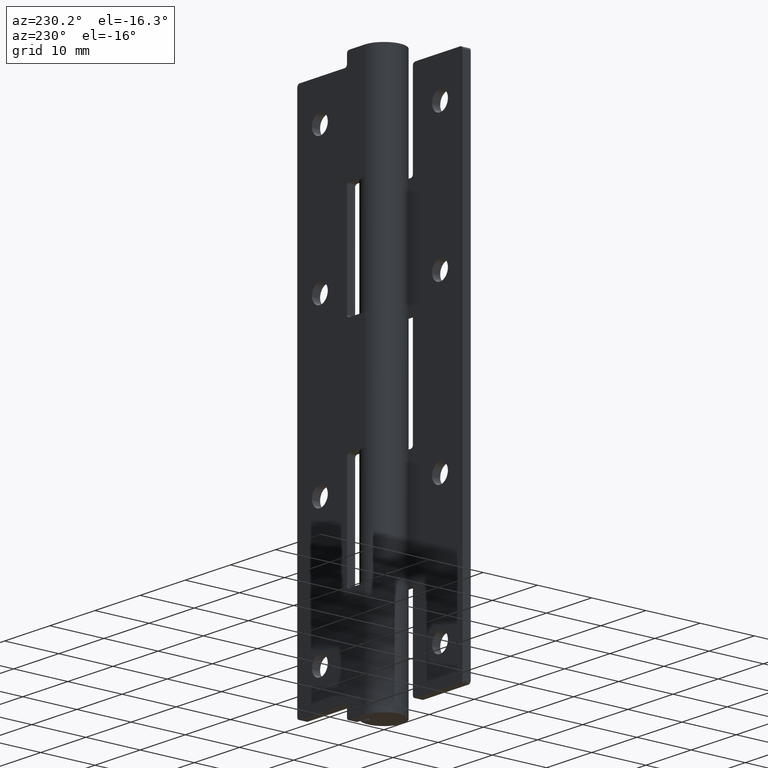
[diagram: clean part render]
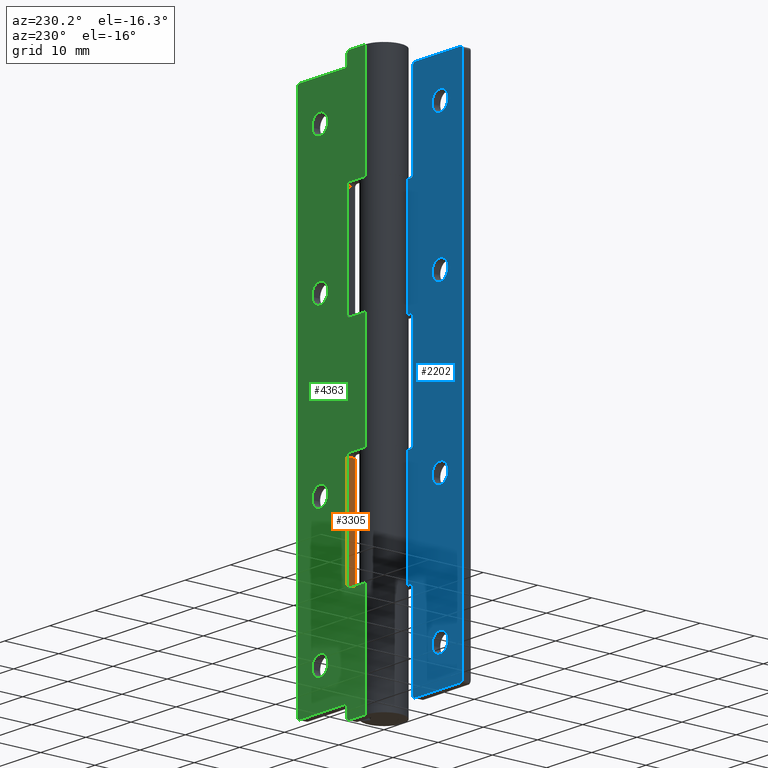
[diagram: same view with three faces highlighted in distinct colors, each labeled with its STEP entity id]
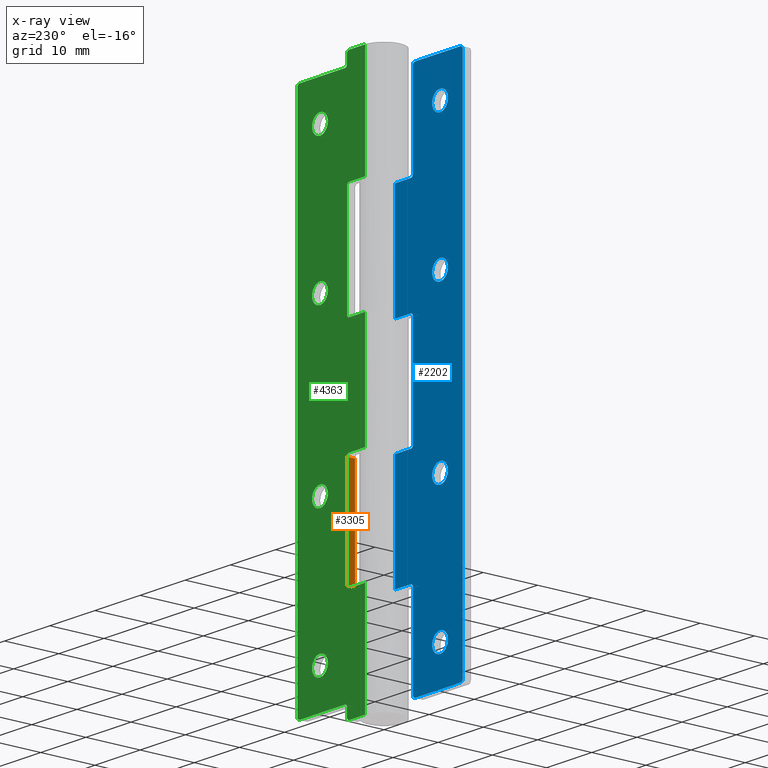
[diagram: x-ray of the same camera — body ghosted, the three highlighted faces saturated]
A machine part, auxiliary view with three faces highlighted in distinct colors.
The next image is the same camera in x-ray (body ghosted, the three faces saturated) — at least one of them is partly hidden behind the body in this view.
Their STEP definitions:

[orange] entity #3305 — the highlighted face is a freeform B-spline surface patch.
#2988=CARTESIAN_POINT('',(4.0,2.0,39.0));
#2989=VERTEX_POINT('',#2988);
#3010=CARTESIAN_POINT('',(4.0,3.500000000000000,39.0));
#3011=VERTEX_POINT('',#3010);
#3025=CARTESIAN_POINT('',(4.0,2.0,39.0));
#3026=CARTESIAN_POINT('',(4.0,3.500000000000000,39.0));
#3027=QUASI_UNIFORM_CURVE('',1,(#3025,#3026),.UNSPECIFIED.,.F.,.U.);
#3028=EDGE_CURVE('',#2989,#3011,#3027,.T.);
#3047=CARTESIAN_POINT('',(4.0,2.0,20.0));
#3048=VERTEX_POINT('',#3047);
#3064=CARTESIAN_POINT('',(4.0,3.500000000000000,20.0));
#3065=VERTEX_POINT('',#3064);
#3066=CARTESIAN_POINT('',(4.0,3.500000000000000,20.0));
#3067=CARTESIAN_POINT('',(4.0,2.0,20.0));
#3068=QUASI_UNIFORM_CURVE('',1,(#3066,#3067),.UNSPECIFIED.,.F.,.U.);
#3069=EDGE_CURVE('',#3065,#3048,#3068,.T.);
#3286=CARTESIAN_POINT('',(4.0,3.574924997092710,19.050950036825689));
#3287=CARTESIAN_POINT('',(4.0,3.574924997092710,39.949050472794028));
#3288=CARTESIAN_POINT('',(4.0,1.925074962674156,19.050950036825689));
#3289=CARTESIAN_POINT('',(4.0,1.925074962674156,39.949050472794028));
#3290=B_SPLINE_SURFACE_WITH_KNOTS('',1,1,((#3286,#3288),(#3287,#3289)),.UNSPECIFIED.,.F.,.F.,.U.,(2,2),(2,2),(0.0,20.898100435968342),(0.041708334948495,0.958291687403247),.UNSPECIFIED.);
#3291=CARTESIAN_POINT('',(4.0,3.500000000000000,20.0));
#3292=CARTESIAN_POINT('',(4.0,3.500000000000000,39.0));
#3293=QUASI_UNIFORM_CURVE('',1,(#3291,#3292),.UNSPECIFIED.,.F.,.U.);
#3294=EDGE_CURVE('',#3065,#3011,#3293,.T.);
#3295=ORIENTED_EDGE('',*,*,#3294,.F.);
#3296=ORIENTED_EDGE('',*,*,#3069,.T.);
#3297=CARTESIAN_POINT('',(4.0,2.0,20.0));
#3298=CARTESIAN_POINT('',(4.0,2.0,39.0));
#3299=QUASI_UNIFORM_CURVE('',1,(#3297,#3298),.UNSPECIFIED.,.F.,.U.);
#3300=EDGE_CURVE('',#3048,#2989,#3299,.T.);
#3301=ORIENTED_EDGE('',*,*,#3300,.T.);
#3302=ORIENTED_EDGE('',*,*,#3028,.T.);
#3303=EDGE_LOOP('',(#3295,#3296,#3301,#3302));
#3304=FACE_OUTER_BOUND('',#3303,.T.);
#3305=ADVANCED_FACE('',(#3304),#3290,.F.);

[blue] entity #2202 — the highlighted face is a freeform B-spline surface patch.
#351=CARTESIAN_POINT('',(-8.253264102773130,-2.0,89.393165055627662));
#352=VERTEX_POINT('',#351);
#358=CARTESIAN_POINT('',(-10.0,-2.0,87.750000000000000));
#359=VERTEX_POINT('',#358);
#360=CARTESIAN_POINT('',(-10.0,-2.0,87.750000000000000));
#361=CARTESIAN_POINT('',(-8.353764383266924,-2.000000000000000,87.750000000000000));
#362=CARTESIAN_POINT('',(-8.253264102773130,-2.000000000000000,89.393165055627662));
#370=(BOUNDED_CURVE()B_SPLINE_CURVE(2,(#360,#361,#362),.UNSPECIFIED.,.F.,.U.)B_SPLINE_CURVE_WITH_KNOTS((3,3),(0.500000000000000,0.739332962205154),.UNSPECIFIED.)CURVE()GEOMETRIC_REPRESENTATION_ITEM()RATIONAL_B_SPLINE_CURVE((1.0,0.719603993326296,0.976072041594302))REPRESENTATION_ITEM(''));
#371=EDGE_CURVE('',#359,#352,#370,.T.);
#373=CARTESIAN_POINT('',(-11.737766671125360,-2.0,89.706559910742385));
#374=VERTEX_POINT('',#373);
#375=CARTESIAN_POINT('',(-11.737766671125357,-2.0,89.706559910742385));
#376=CARTESIAN_POINT('',(-11.750000000000000,-2.000000000000000,89.603642209484875));
#377=CARTESIAN_POINT('',(-11.750000000000000,-2.0,89.500000000000000));
#378=CARTESIAN_POINT('',(-11.750000000000004,-2.0,87.750000000000000));
#379=CARTESIAN_POINT('',(-10.0,-2.0,87.750000000000000));
#387=(BOUNDED_CURVE()B_SPLINE_CURVE(2,(#375,#376,#377,#378,#379),.UNSPECIFIED.,.F.,.U.)B_SPLINE_CURVE_WITH_KNOTS((3,2,3),(0.229562473497545,0.250000000000000,0.500000000000000),.UNSPECIFIED.)CURVE()GEOMETRIC_REPRESENTATION_ITEM()RATIONAL_B_SPLINE_CURVE((0.956026754152411,0.976055948312443,1.0,0.707106781186547,1.0))REPRESENTATION_ITEM(''));
#388=EDGE_CURVE('',#374,#359,#387,.T.);
#432=CARTESIAN_POINT('',(-10.0,-2.0,91.250000000000000));
#433=VERTEX_POINT('',#432);
#434=CARTESIAN_POINT('',(-10.0,-2.0,91.250000000000000));
#435=CARTESIAN_POINT('',(-11.554305420247269,-2.000000000000000,91.249999999999972));
#436=CARTESIAN_POINT('',(-11.737766671125357,-2.0,89.706559910742385));
#444=(BOUNDED_CURVE()B_SPLINE_CURVE(2,(#434,#435,#436),.UNSPECIFIED.,.F.,.U.)B_SPLINE_CURVE_WITH_KNOTS((3,3),(0.0,0.229562473497545),.UNSPECIFIED.)CURVE()GEOMETRIC_REPRESENTATION_ITEM()RATIONAL_B_SPLINE_CURVE((1.0,0.731050832874104,0.956026754152411))REPRESENTATION_ITEM(''));
#445=EDGE_CURVE('',#433,#374,#444,.T.);
#447=CARTESIAN_POINT('',(-8.253264102773130,-2.000000000000000,89.393165055627662));
#448=CARTESIAN_POINT('',(-8.250000000000000,-2.000000000000000,89.446532664040632));
#449=CARTESIAN_POINT('',(-8.250000000000000,-2.0,89.500000000000000));
#450=CARTESIAN_POINT('',(-8.250000000000000,-2.0,91.249999999999986));
#451=CARTESIAN_POINT('',(-10.0,-2.0,91.250000000000000));
#459=(BOUNDED_CURVE()B_SPLINE_CURVE(2,(#447,#448,#449,#450,#451),.UNSPECIFIED.,.F.,.U.)B_SPLINE_CURVE_WITH_KNOTS((3,2,3),(0.739332962205155,0.750000000000000,1.0),.UNSPECIFIED.)CURVE()GEOMETRIC_REPRESENTATION_ITEM()RATIONAL_B_SPLINE_CURVE((0.976072041594304,0.987502787860253,1.0,0.707106781186547,1.0))REPRESENTATION_ITEM(''));
#460=EDGE_CURVE('',#352,#433,#459,.T.);
#537=CARTESIAN_POINT('',(-8.253264102773130,-2.0,64.393165055627662));
#538=VERTEX_POINT('',#537);
#544=CARTESIAN_POINT('',(-10.0,-2.0,62.750000000000000));
#545=VERTEX_POINT('',#544);
#546=CARTESIAN_POINT('',(-10.0,-2.0,62.750000000000000));
#547=CARTESIAN_POINT('',(-8.353764383266924,-2.000000000000000,62.750000000000007));
#548=CARTESIAN_POINT('',(-8.253264102773130,-2.000000000000000,64.393165055627662));
#556=(BOUNDED_CURVE()B_SPLINE_CURVE(2,(#546,#547,#548),.UNSPECIFIED.,.F.,.U.)B_SPLINE_CURVE_WITH_KNOTS((3,3),(0.500000000000000,0.739332962205154),.UNSPECIFIED.)CURVE()GEOMETRIC_REPRESENTATION_ITEM()RATIONAL_B_SPLINE_CURVE((1.0,0.719603993326296,0.976072041594302))REPRESENTATION_ITEM(''));
#557=EDGE_CURVE('',#545,#538,#556,.T.);
#559=CARTESIAN_POINT('',(-11.737766671125360,-2.0,64.706559910742357));
#560=VERTEX_POINT('',#559);
#561=CARTESIAN_POINT('',(-11.737766671125353,-2.000000000000000,64.706559910742357));
#562=CARTESIAN_POINT('',(-11.750000000000004,-2.000000000000000,64.603642209484860));
#563=CARTESIAN_POINT('',(-11.750000000000000,-2.0,64.500000000000000));
#564=CARTESIAN_POINT('',(-11.750000000000004,-2.0,62.750000000000000));
#565=CARTESIAN_POINT('',(-10.0,-2.0,62.750000000000000));
#573=(BOUNDED_CURVE()B_SPLINE_CURVE(2,(#561,#562,#563,#564,#565),.UNSPECIFIED.,.F.,.U.)B_SPLINE_CURVE_WITH_KNOTS((3,2,3),(0.229562473497548,0.250000000000000,0.500000000000000),.UNSPECIFIED.)CURVE()GEOMETRIC_REPRESENTATION_ITEM()RATIONAL_B_SPLINE_CURVE((0.956026754152417,0.976055948312447,1.0,0.707106781186547,1.0))REPRESENTATION_ITEM(''));
#574=EDGE_CURVE('',#560,#545,#573,.T.);
#618=CARTESIAN_POINT('',(-10.0,-2.0,66.250000000000000));
#619=VERTEX_POINT('',#618);
#620=CARTESIAN_POINT('',(-10.0,-2.0,66.250000000000000));
#621=CARTESIAN_POINT('',(-11.554305420247296,-2.000000000000000,66.250000000000000));
#622=CARTESIAN_POINT('',(-11.737766671125353,-2.000000000000000,64.706559910742357));
#630=(BOUNDED_CURVE()B_SPLINE_CURVE(2,(#620,#621,#622),.UNSPECIFIED.,.F.,.U.)B_SPLINE_CURVE_WITH_KNOTS((3,3),(0.0,0.229562473497548),.UNSPECIFIED.)CURVE()GEOMETRIC_REPRESENTATION_ITEM()RATIONAL_B_SPLINE_CURVE((1.0,0.731050832874101,0.956026754152417))REPRESENTATION_ITEM(''));
#631=EDGE_CURVE('',#619,#560,#630,.T.);
#633=CARTESIAN_POINT('',(-8.253264102773130,-2.000000000000000,64.393165055627676));
#634=CARTESIAN_POINT('',(-8.250000000000000,-2.000000000000000,64.446532664040618));
#635=CARTESIAN_POINT('',(-8.250000000000000,-2.0,64.500000000000000));
#636=CARTESIAN_POINT('',(-8.250000000000000,-2.0,66.250000000000000));
#637=CARTESIAN_POINT('',(-10.0,-2.0,66.250000000000000));
#645=(BOUNDED_CURVE()B_SPLINE_CURVE(2,(#633,#634,#635,#636,#637),.UNSPECIFIED.,.F.,.U.)B_SPLINE_CURVE_WITH_KNOTS((3,2,3),(0.739332962205155,0.750000000000000,1.0),.UNSPECIFIED.)CURVE()GEOMETRIC_REPRESENTATION_ITEM()RATIONAL_B_SPLINE_CURVE((0.976072041594304,0.987502787860253,1.0,0.707106781186547,1.0))REPRESENTATION_ITEM(''));
#646=EDGE_CURVE('',#538,#619,#645,.T.);
#723=CARTESIAN_POINT('',(-8.253264102773130,-2.0,34.393165055627669));
#724=VERTEX_POINT('',#723);
#730=CARTESIAN_POINT('',(-10.0,-2.0,32.750000000000000));
#731=VERTEX_POINT('',#730);
#732=CARTESIAN_POINT('',(-10.0,-2.0,32.750000000000000));
#733=CARTESIAN_POINT('',(-8.353764383266904,-2.000000000000000,32.750000000000007));
#734=CARTESIAN_POINT('',(-8.253264102773130,-2.0,34.393165055627669));
#742=(BOUNDED_CURVE()B_SPLINE_CURVE(2,(#732,#733,#734),.UNSPECIFIED.,.F.,.U.)B_SPLINE_CURVE_WITH_KNOTS((3,3),(0.500000000000000,0.739332962205157),.UNSPECIFIED.)CURVE()GEOMETRIC_REPRESENTATION_ITEM()RATIONAL_B_SPLINE_CURVE((1.0,0.719603993326293,0.976072041594307))REPRESENTATION_ITEM(''));
#743=EDGE_CURVE('',#731,#724,#742,.T.);
#745=CARTESIAN_POINT('',(-11.737766671125360,-2.0,34.706559910742357));
#746=VERTEX_POINT('',#745);
#747=CARTESIAN_POINT('',(-11.737766671125366,-2.000000000000000,34.706559910742357));
#748=CARTESIAN_POINT('',(-11.750000000000004,-2.000000000000000,34.603642209484875));
#749=CARTESIAN_POINT('',(-11.750000000000000,-2.0,34.500000000000000));
#750=CARTESIAN_POINT('',(-11.750000000000004,-2.0,32.750000000000000));
#751=CARTESIAN_POINT('',(-10.0,-2.0,32.750000000000000));
#759=(BOUNDED_CURVE()B_SPLINE_CURVE(2,(#747,#748,#749,#750,#751),.UNSPECIFIED.,.F.,.U.)B_SPLINE_CURVE_WITH_KNOTS((3,2,3),(0.229562473497548,0.250000000000000,0.500000000000000),.UNSPECIFIED.)CURVE()GEOMETRIC_REPRESENTATION_ITEM()RATIONAL_B_SPLINE_CURVE((0.956026754152417,0.976055948312447,1.0,0.707106781186547,1.0))REPRESENTATION_ITEM(''));
#760=EDGE_CURVE('',#746,#731,#759,.T.);
#804=CARTESIAN_POINT('',(-10.0,-2.0,36.250000000000007));
#805=VERTEX_POINT('',#804);
#806=CARTESIAN_POINT('',(-10.0,-2.0,36.250000000000007));
#807=CARTESIAN_POINT('',(-11.554305420247296,-2.000000000000000,36.250000000000014));
#808=CARTESIAN_POINT('',(-11.737766671125366,-2.000000000000000,34.706559910742357));
#816=(BOUNDED_CURVE()B_SPLINE_CURVE(2,(#806,#807,#808),.UNSPECIFIED.,.F.,.U.)B_SPLINE_CURVE_WITH_KNOTS((3,3),(0.0,0.229562473497548),.UNSPECIFIED.)CURVE()GEOMETRIC_REPRESENTATION_ITEM()RATIONAL_B_SPLINE_CURVE((1.0,0.731050832874101,0.956026754152417))REPRESENTATION_ITEM(''));
#817=EDGE_CURVE('',#805,#746,#816,.T.);
#819=CARTESIAN_POINT('',(-8.253264102773130,-2.000000000000000,34.393165055627669));
#820=CARTESIAN_POINT('',(-8.250000000000000,-2.000000000000000,34.446532664040618));
#821=CARTESIAN_POINT('',(-8.250000000000000,-2.0,34.500000000000000));
#822=CARTESIAN_POINT('',(-8.250000000000000,-2.0,36.250000000000007));
#823=CARTESIAN_POINT('',(-10.0,-2.0,36.250000000000007));
#831=(BOUNDED_CURVE()B_SPLINE_CURVE(2,(#819,#820,#821,#822,#823),.UNSPECIFIED.,.F.,.U.)B_SPLINE_CURVE_WITH_KNOTS((3,2,3),(0.739332962205156,0.750000000000000,1.0),.UNSPECIFIED.)CURVE()GEOMETRIC_REPRESENTATION_ITEM()RATIONAL_B_SPLINE_CURVE((0.976072041594306,0.987502787860253,1.0,0.707106781186547,1.0))REPRESENTATION_ITEM(''));
#832=EDGE_CURVE('',#724,#805,#831,.T.);
#909=CARTESIAN_POINT('',(-8.253264102773130,-2.0,9.393165055627669));
#910=VERTEX_POINT('',#909);
#916=CARTESIAN_POINT('',(-10.0,-2.0,7.750000000000000));
#917=VERTEX_POINT('',#916);
#918=CARTESIAN_POINT('',(-10.0,-2.0,7.750000000000000));
#919=CARTESIAN_POINT('',(-8.353764383266904,-2.000000000000000,7.749999999999999));
#920=CARTESIAN_POINT('',(-8.253264102773130,-2.0,9.393165055627669));
#928=(BOUNDED_CURVE()B_SPLINE_CURVE(2,(#918,#919,#920),.UNSPECIFIED.,.F.,.U.)B_SPLINE_CURVE_WITH_KNOTS((3,3),(0.500000000000000,0.739332962205157),.UNSPECIFIED.)CURVE()GEOMETRIC_REPRESENTATION_ITEM()RATIONAL_B_SPLINE_CURVE((1.0,0.719603993326293,0.976072041594307))REPRESENTATION_ITEM(''));
#929=EDGE_CURVE('',#917,#910,#928,.T.);
#931=CARTESIAN_POINT('',(-11.737766671125360,-2.0,9.706559910742362));
#932=VERTEX_POINT('',#931);
#933=CARTESIAN_POINT('',(-11.737766671125360,-2.000000000000000,9.706559910742362));
#934=CARTESIAN_POINT('',(-11.750000000000000,-2.000000000000000,9.603642209484860));
#935=CARTESIAN_POINT('',(-11.750000000000000,-2.0,9.500000000000000));
#936=CARTESIAN_POINT('',(-11.750000000000004,-2.0,7.750000000000001));
#937=CARTESIAN_POINT('',(-10.0,-2.0,7.750000000000000));
#945=(BOUNDED_CURVE()B_SPLINE_CURVE(2,(#933,#934,#935,#936,#937),.UNSPECIFIED.,.F.,.U.)B_SPLINE_CURVE_WITH_KNOTS((3,2,3),(0.229562473497548,0.250000000000000,0.500000000000000),.UNSPECIFIED.)CURVE()GEOMETRIC_REPRESENTATION_ITEM()RATIONAL_B_SPLINE_CURVE((0.956026754152417,0.976055948312447,1.0,0.707106781186547,1.0))REPRESENTATION_ITEM(''));
#946=EDGE_CURVE('',#932,#917,#945,.T.);
#990=CARTESIAN_POINT('',(-10.0,-2.0,11.250000000000000));
#991=VERTEX_POINT('',#990);
#992=CARTESIAN_POINT('',(-10.0,-2.0,11.250000000000000));
#993=CARTESIAN_POINT('',(-11.554305420247298,-2.000000000000000,11.250000000000000));
#994=CARTESIAN_POINT('',(-11.737766671125360,-2.000000000000000,9.706559910742362));
#1002=(BOUNDED_CURVE()B_SPLINE_CURVE(2,(#992,#993,#994),.UNSPECIFIED.,.F.,.U.)B_SPLINE_CURVE_WITH_KNOTS((3,3),(0.0,0.229562473497548),.UNSPECIFIED.)CURVE()GEOMETRIC_REPRESENTATION_ITEM()RATIONAL_B_SPLINE_CURVE((1.0,0.731050832874101,0.956026754152417))REPRESENTATION_ITEM(''));
#1003=EDGE_CURVE('',#991,#932,#1002,.T.);
#1005=CARTESIAN_POINT('',(-8.253264102773130,-2.000000000000000,9.393165055627669));
#1006=CARTESIAN_POINT('',(-8.250000000000000,-2.000000000000000,9.446532664040618));
#1007=CARTESIAN_POINT('',(-8.250000000000000,-2.0,9.500000000000000));
#1008=CARTESIAN_POINT('',(-8.250000000000000,-2.0,11.250000000000000));
#1009=CARTESIAN_POINT('',(-10.0,-2.0,11.250000000000000));
#1017=(BOUNDED_CURVE()B_SPLINE_CURVE(2,(#1005,#1006,#1007,#1008,#1009),.UNSPECIFIED.,.F.,.U.)B_SPLINE_CURVE_WITH_KNOTS((3,2,3),(0.739332962205156,0.750000000000000,1.0),.UNSPECIFIED.)CURVE()GEOMETRIC_REPRESENTATION_ITEM()RATIONAL_B_SPLINE_CURVE((0.976072041594306,0.987502787860253,1.0,0.707106781186547,1.0))REPRESENTATION_ITEM(''));
#1018=EDGE_CURVE('',#910,#991,#1017,.T.);
#1053=CARTESIAN_POINT('',(-4.0,-2.0,40.0));
#1054=VERTEX_POINT('',#1053);
#1055=CARTESIAN_POINT('',(-3.500000000000000,-2.0,39.500000000000000));
#1056=VERTEX_POINT('',#1055);
#1057=CARTESIAN_POINT('',(-4.0,-2.0,40.0));
#1058=CARTESIAN_POINT('',(-4.000000000000000,-2.000000000000000,39.500000000000000));
#1059=CARTESIAN_POINT('',(-3.500000000000000,-2.0,39.500000000000000));
#1067=(BOUNDED_CURVE()B_SPLINE_CURVE(2,(#1057,#1058,#1059),.UNSPECIFIED.,.F.,.U.)CURVE()GEOMETRIC_REPRESENTATION_ITEM()QUASI_UNIFORM_CURVE()RATIONAL_B_SPLINE_CURVE((1.0,0.707106781186548,1.0))REPRESENTATION_ITEM(''));
#1068=EDGE_CURVE('',#1054,#1056,#1067,.T.);
#1114=CARTESIAN_POINT('',(-3.500000000000000,-2.0,59.500000000000000));
#1115=VERTEX_POINT('',#1114);
#1116=CARTESIAN_POINT('',(-4.0,-2.0,59.0));
#1117=VERTEX_POINT('',#1116);
#1118=CARTESIAN_POINT('',(-3.500000000000000,-2.0,59.500000000000000));
#1119=CARTESIAN_POINT('',(-4.000000000000000,-2.000000000000000,59.500000000000007));
#1120=CARTESIAN_POINT('',(-4.0,-2.0,59.0));
#1128=(BOUNDED_CURVE()B_SPLINE_CURVE(2,(#1118,#1119,#1120),.UNSPECIFIED.,.F.,.U.)CURVE()GEOMETRIC_REPRESENTATION_ITEM()QUASI_UNIFORM_CURVE()RATIONAL_B_SPLINE_CURVE((1.0,0.707106781186548,1.0))REPRESENTATION_ITEM(''));
#1129=EDGE_CURVE('',#1115,#1117,#1128,.T.);
#1175=CARTESIAN_POINT('',(-3.500000000000000,-2.0,19.500000000000000));
#1176=VERTEX_POINT('',#1175);
#1177=CARTESIAN_POINT('',(-4.0,-2.0,19.0));
#1178=VERTEX_POINT('',#1177);
#1179=CARTESIAN_POINT('',(-3.500000000000000,-2.0,19.500000000000000));
#1180=CARTESIAN_POINT('',(-4.000000000000000,-2.000000000000000,19.500000000000004));
#1181=CARTESIAN_POINT('',(-4.0,-2.0,19.0));
#1189=(BOUNDED_CURVE()B_SPLINE_CURVE(2,(#1179,#1180,#1181),.UNSPECIFIED.,.F.,.U.)CURVE()GEOMETRIC_REPRESENTATION_ITEM()QUASI_UNIFORM_CURVE()RATIONAL_B_SPLINE_CURVE((1.0,0.707106781186548,1.0))REPRESENTATION_ITEM(''));
#1190=EDGE_CURVE('',#1176,#1178,#1189,.T.);
#1253=CARTESIAN_POINT('',(-15.0,-2.0,3.0));
#1254=VERTEX_POINT('',#1253);
#1260=CARTESIAN_POINT('',(-14.500000000000000,-2.0,2.500000000000000));
#1261=VERTEX_POINT('',#1260);
#1262=CARTESIAN_POINT('',(-14.500000000000000,-2.0,2.500000000000000));
#1263=CARTESIAN_POINT('',(-15.000000000000009,-2.000000000000000,2.500000000000000));
#1264=CARTESIAN_POINT('',(-15.0,-2.0,3.0));
#1272=(BOUNDED_CURVE()B_SPLINE_CURVE(2,(#1262,#1263,#1264),.UNSPECIFIED.,.F.,.U.)CURVE()GEOMETRIC_REPRESENTATION_ITEM()QUASI_UNIFORM_CURVE()RATIONAL_B_SPLINE_CURVE((1.0,0.707106781186548,1.0))REPRESENTATION_ITEM(''));
#1273=EDGE_CURVE('',#1261,#1254,#1272,.T.);
#1297=CARTESIAN_POINT('',(-4.0,-2.0,3.0));
#1298=VERTEX_POINT('',#1297);
#1299=CARTESIAN_POINT('',(-4.500000000000000,-2.0,2.500000000000000));
#1300=VERTEX_POINT('',#1299);
#1301=CARTESIAN_POINT('',(-4.0,-2.0,3.0));
#1302=CARTESIAN_POINT('',(-4.000000000000000,-2.000000000000000,2.500000000000000));
#1303=CARTESIAN_POINT('',(-4.500000000000000,-2.0,2.500000000000000));
#1311=(BOUNDED_CURVE()B_SPLINE_CURVE(2,(#1301,#1302,#1303),.UNSPECIFIED.,.F.,.U.)CURVE()GEOMETRIC_REPRESENTATION_ITEM()QUASI_UNIFORM_CURVE()RATIONAL_B_SPLINE_CURVE((1.0,0.707106781186548,1.0))REPRESENTATION_ITEM(''));
#1312=EDGE_CURVE('',#1298,#1300,#1311,.T.);
#1358=CARTESIAN_POINT('',(-4.0,-2.0,80.0));
#1359=VERTEX_POINT('',#1358);
#1360=CARTESIAN_POINT('',(-3.500000000000000,-2.0,79.500000000000000));
#1361=VERTEX_POINT('',#1360);
#1362=CARTESIAN_POINT('',(-4.0,-2.0,80.0));
#1363=CARTESIAN_POINT('',(-4.000000000000000,-2.000000000000000,79.500000000000014));
#1364=CARTESIAN_POINT('',(-3.500000000000000,-2.0,79.500000000000000));
#1372=(BOUNDED_CURVE()B_SPLINE_CURVE(2,(#1362,#1363,#1364),.UNSPECIFIED.,.F.,.U.)CURVE()GEOMETRIC_REPRESENTATION_ITEM()QUASI_UNIFORM_CURVE()RATIONAL_B_SPLINE_CURVE((1.0,0.707106781186548,1.0))REPRESENTATION_ITEM(''));
#1373=EDGE_CURVE('',#1359,#1361,#1372,.T.);
#1436=CARTESIAN_POINT('',(-14.500000000000000,-2.0,96.500000000000000));
#1437=VERTEX_POINT('',#1436);
#1443=CARTESIAN_POINT('',(-15.0,-2.0,96.0));
#1444=VERTEX_POINT('',#1443);
#1445=CARTESIAN_POINT('',(-15.0,-2.0,96.0));
#1446=CARTESIAN_POINT('',(-15.000000000000009,-2.000000000000000,96.500000000000014));
#1447=CARTESIAN_POINT('',(-14.500000000000000,-2.0,96.500000000000000));
#1455=(BOUNDED_CURVE()B_SPLINE_CURVE(2,(#1445,#1446,#1447),.UNSPECIFIED.,.F.,.U.)CURVE()GEOMETRIC_REPRESENTATION_ITEM()QUASI_UNIFORM_CURVE()RATIONAL_B_SPLINE_CURVE((1.0,0.707106781186548,1.0))REPRESENTATION_ITEM(''));
#1456=EDGE_CURVE('',#1444,#1437,#1455,.T.);
#1480=CARTESIAN_POINT('',(-4.500000000000000,-2.0,96.500000000000000));
#1481=VERTEX_POINT('',#1480);
#1482=CARTESIAN_POINT('',(-4.0,-2.0,96.0));
#1483=VERTEX_POINT('',#1482);
#1484=CARTESIAN_POINT('',(-4.500000000000000,-2.0,96.500000000000000));
#1485=CARTESIAN_POINT('',(-4.000000000000000,-2.000000000000000,96.500000000000014));
#1486=CARTESIAN_POINT('',(-4.0,-2.0,96.0));
#1494=(BOUNDED_CURVE()B_SPLINE_CURVE(2,(#1484,#1485,#1486),.UNSPECIFIED.,.F.,.U.)CURVE()GEOMETRIC_REPRESENTATION_ITEM()QUASI_UNIFORM_CURVE()RATIONAL_B_SPLINE_CURVE((1.0,0.707106781186548,1.0))REPRESENTATION_ITEM(''));
#1495=EDGE_CURVE('',#1481,#1483,#1494,.T.);
#1532=CARTESIAN_POINT('',(-1.653896E-015,-2.0,39.500000000000000));
#1533=VERTEX_POINT('',#1532);
#1534=CARTESIAN_POINT('',(-3.500000000000000,-2.0,39.500000000000000));
#1535=CARTESIAN_POINT('',(-1.653896E-015,-2.0,39.500000000000000));
#1536=QUASI_UNIFORM_CURVE('',1,(#1534,#1535),.UNSPECIFIED.,.F.,.U.);
#1537=EDGE_CURVE('',#1056,#1533,#1536,.T.);
#1610=CARTESIAN_POINT('',(-1.653896E-015,-2.0,59.500000000000000));
#1611=VERTEX_POINT('',#1610);
#1612=CARTESIAN_POINT('',(-1.653896E-015,-2.0,59.500000000000000));
#1613=CARTESIAN_POINT('',(-3.500000000000000,-2.0,59.500000000000000));
#1614=QUASI_UNIFORM_CURVE('',1,(#1612,#1613),.UNSPECIFIED.,.F.,.U.);
#1615=EDGE_CURVE('',#1611,#1115,#1614,.T.);
#1672=CARTESIAN_POINT('',(-4.0,-2.0,59.0));
#1673=CARTESIAN_POINT('',(-4.0,-2.0,40.0));
#1674=QUASI_UNIFORM_CURVE('',1,(#1672,#1673),.UNSPECIFIED.,.F.,.U.);
#1675=EDGE_CURVE('',#1117,#1054,#1674,.T.);
#1692=CARTESIAN_POINT('',(-1.653896E-015,-2.0,79.500000000000000));
#1693=VERTEX_POINT('',#1692);
#1694=CARTESIAN_POINT('',(-3.500000000000000,-2.0,79.500000000000000));
#1695=CARTESIAN_POINT('',(-1.653896E-015,-2.0,79.500000000000000));
#1696=QUASI_UNIFORM_CURVE('',1,(#1694,#1695),.UNSPECIFIED.,.F.,.U.);
#1697=EDGE_CURVE('',#1361,#1693,#1696,.T.);
#1768=CARTESIAN_POINT('',(-4.0,-2.0,96.0));
#1769=CARTESIAN_POINT('',(-4.0,-2.0,80.0));
#1770=QUASI_UNIFORM_CURVE('',1,(#1768,#1769),.UNSPECIFIED.,.F.,.U.);
#1771=EDGE_CURVE('',#1483,#1359,#1770,.T.);
#1790=CARTESIAN_POINT('',(-1.653896E-015,-2.0,19.500000000000000));
#1791=VERTEX_POINT('',#1790);
#1792=CARTESIAN_POINT('',(-1.653896E-015,-2.0,19.500000000000000));
#1793=CARTESIAN_POINT('',(-3.500000000000000,-2.0,19.500000000000000));
#1794=QUASI_UNIFORM_CURVE('',1,(#1792,#1793),.UNSPECIFIED.,.F.,.U.);
#1795=EDGE_CURVE('',#1791,#1176,#1794,.T.);
#1852=CARTESIAN_POINT('',(-4.0,-2.0,19.0));
#1853=CARTESIAN_POINT('',(-4.0,-2.0,3.0));
#1854=QUASI_UNIFORM_CURVE('',1,(#1852,#1853),.UNSPECIFIED.,.F.,.U.);
#1855=EDGE_CURVE('',#1178,#1298,#1854,.T.);
#1872=CARTESIAN_POINT('',(-15.0,-2.0,96.0));
#1873=CARTESIAN_POINT('',(-15.0,-2.0,3.0));
#1874=QUASI_UNIFORM_CURVE('',1,(#1872,#1873),.UNSPECIFIED.,.F.,.U.);
#1875=EDGE_CURVE('',#1444,#1254,#1874,.T.);
#1892=CARTESIAN_POINT('',(-14.500000000000000,-2.0,2.500000000000000));
#1893=CARTESIAN_POINT('',(-4.500000000000000,-2.0,2.500000000000000));
#1894=QUASI_UNIFORM_CURVE('',1,(#1892,#1893),.UNSPECIFIED.,.F.,.U.);
#1895=EDGE_CURVE('',#1261,#1300,#1894,.T.);
#1918=CARTESIAN_POINT('',(-14.500000000000000,-2.0,96.500000000000000));
#1919=CARTESIAN_POINT('',(-4.500000000000000,-2.0,96.500000000000000));
#1920=QUASI_UNIFORM_CURVE('',1,(#1918,#1919),.UNSPECIFIED.,.F.,.U.);
#1921=EDGE_CURVE('',#1437,#1481,#1920,.T.);
#2110=CARTESIAN_POINT('',(-1.653896E-015,-2.0,39.500000000000000));
#2111=CARTESIAN_POINT('',(-1.653896E-015,-2.0,19.500000000000000));
#2112=QUASI_UNIFORM_CURVE('',1,(#2110,#2111),.UNSPECIFIED.,.F.,.U.);
#2113=EDGE_CURVE('',#1533,#1791,#2112,.T.);
#2141=CARTESIAN_POINT('',(-1.653896E-015,-2.0,79.500000000000000));
#2142=CARTESIAN_POINT('',(-1.653896E-015,-2.0,59.500000000000000));
#2143=QUASI_UNIFORM_CURVE('',1,(#2141,#2142),.UNSPECIFIED.,.F.,.U.);
#2144=EDGE_CURVE('',#1693,#1611,#2143,.T.);
#2151=CARTESIAN_POINT('',(-15.749249970927091,-2.0,-2.195299817809761));
#2152=CARTESIAN_POINT('',(-15.749249970927091,-2.0,101.195302339086200));
#2153=CARTESIAN_POINT('',(0.749250373258439,-2.0,-2.195299817809761));
#2154=CARTESIAN_POINT('',(0.749250373258439,-2.0,101.195302339086200));
#2155=B_SPLINE_SURFACE_WITH_KNOTS('',1,1,((#2151,#2153),(#2152,#2154)),.UNSPECIFIED.,.F.,.F.,.U.,(2,2),(2,2),(0.0,103.390602156895990),(0.0,16.498500344185530),.UNSPECIFIED.);
#2156=ORIENTED_EDGE('',*,*,#1795,.T.);
#2157=ORIENTED_EDGE('',*,*,#1190,.T.);
#2158=ORIENTED_EDGE('',*,*,#1855,.T.);
#2159=ORIENTED_EDGE('',*,*,#1312,.T.);
#2160=ORIENTED_EDGE('',*,*,#1895,.F.);
#2161=ORIENTED_EDGE('',*,*,#1273,.T.);
#2162=ORIENTED_EDGE('',*,*,#1875,.F.);
#2163=ORIENTED_EDGE('',*,*,#1456,.T.);
#2164=ORIENTED_EDGE('',*,*,#1921,.T.);
#2165=ORIENTED_EDGE('',*,*,#1495,.T.);
#2166=ORIENTED_EDGE('',*,*,#1771,.T.);
#2167=ORIENTED_EDGE('',*,*,#1373,.T.);
#2168=ORIENTED_EDGE('',*,*,#1697,.T.);
#2169=ORIENTED_EDGE('',*,*,#2144,.T.);
#2170=ORIENTED_EDGE('',*,*,#1615,.T.);
#2171=ORIENTED_EDGE('',*,*,#1129,.T.);
#2172=ORIENTED_EDGE('',*,*,#1675,.T.);
#2173=ORIENTED_EDGE('',*,*,#1068,.T.);
#2174=ORIENTED_EDGE('',*,*,#1537,.T.);
#2175=ORIENTED_EDGE('',*,*,#2113,.T.);
#2176=EDGE_LOOP('',(#2156,#2157,#2158,#2159,#2160,#2161,#2162,#2163,#2164,#2165,#2166,#2167,#2168,#2169,#2170,#2171,#2172,#2173,#2174,#2175));
#2177=FACE_OUTER_BOUND('',#2176,.T.);
#2178=ORIENTED_EDGE('',*,*,#929,.T.);
#2179=ORIENTED_EDGE('',*,*,#1018,.T.);
#2180=ORIENTED_EDGE('',*,*,#1003,.T.);
#2181=ORIENTED_EDGE('',*,*,#946,.T.);
#2182=EDGE_LOOP('',(#2178,#2179,#2180,#2181));
#2183=FACE_BOUND('',#2182,.T.);
#2184=ORIENTED_EDGE('',*,*,#743,.T.);
#2185=ORIENTED_EDGE('',*,*,#832,.T.);
#2186=ORIENTED_EDGE('',*,*,#817,.T.);
#2187=ORIENTED_EDGE('',*,*,#760,.T.);
#2188=EDGE_LOOP('',(#2184,#2185,#2186,#2187));
#2189=FACE_BOUND('',#2188,.T.);
#2190=ORIENTED_EDGE('',*,*,#557,.T.);
#2191=ORIENTED_EDGE('',*,*,#646,.T.);
#2192=ORIENTED_EDGE('',*,*,#631,.T.);
#2193=ORIENTED_EDGE('',*,*,#574,.T.);
#2194=EDGE_LOOP('',(#2190,#2191,#2192,#2193));
#2195=FACE_BOUND('',#2194,.T.);
#2196=ORIENTED_EDGE('',*,*,#371,.T.);
#2197=ORIENTED_EDGE('',*,*,#460,.T.);
#2198=ORIENTED_EDGE('',*,*,#445,.T.);
#2199=ORIENTED_EDGE('',*,*,#388,.T.);
#2200=EDGE_LOOP('',(#2196,#2197,#2198,#2199));
#2201=FACE_BOUND('',#2200,.T.);
#2202=ADVANCED_FACE('',(#2177,#2183,#2189,#2195,#2201),#2155,.T.);

[green] entity #4363 — the highlighted face is a freeform B-spline surface patch.
#2279=CARTESIAN_POINT('',(8.255394665999852,3.499999999999951,89.637303417940785));
#2280=VERTEX_POINT('',#2279);
#2286=CARTESIAN_POINT('',(10.0,3.499999999999950,91.250000000000000));
#2287=VERTEX_POINT('',#2286);
#2288=CARTESIAN_POINT('',(10.0,3.499999999999950,91.250000000000000));
#2289=CARTESIAN_POINT('',(8.382316640373986,3.499999999999951,91.249999999999986));
#2290=CARTESIAN_POINT('',(8.255394665999852,3.499999999999951,89.637303417940785));
#2298=(BOUNDED_CURVE()B_SPLINE_CURVE(2,(#2288,#2289,#2290),.UNSPECIFIED.,.F.,.U.)B_SPLINE_CURVE_WITH_KNOTS((3,3),(0.0,0.236331300550804),.UNSPECIFIED.)CURVE()GEOMETRIC_REPRESENTATION_ITEM()RATIONAL_B_SPLINE_CURVE((1.0,0.723120658701222,0.969723356000766))REPRESENTATION_ITEM(''));
#2299=EDGE_CURVE('',#2287,#2280,#2298,.T.);
#2301=CARTESIAN_POINT('',(11.744605334000150,3.499999999999950,89.362696582059201));
#2302=VERTEX_POINT('',#2301);
#2303=CARTESIAN_POINT('',(11.744605334000147,3.499999999999950,89.362696582059201));
#2304=CARTESIAN_POINT('',(11.749999999999998,3.499999999999951,89.431242312317565));
#2305=CARTESIAN_POINT('',(11.750000000000000,3.499999999999950,89.500000000000000));
#2306=CARTESIAN_POINT('',(11.750000000000004,3.499999999999950,91.249999999999986));
#2307=CARTESIAN_POINT('',(10.0,3.499999999999950,91.250000000000000));
#2315=(BOUNDED_CURVE()B_SPLINE_CURVE(2,(#2303,#2304,#2305,#2306,#2307),.UNSPECIFIED.,.F.,.U.)B_SPLINE_CURVE_WITH_KNOTS((3,2,3),(0.736331300550804,0.750000000000000,1.0),.UNSPECIFIED.)CURVE()GEOMETRIC_REPRESENTATION_ITEM()RATIONAL_B_SPLINE_CURVE((0.969723356000765,0.983986122485325,1.0,0.707106781186547,1.0))REPRESENTATION_ITEM(''));
#2316=EDGE_CURVE('',#2302,#2287,#2315,.T.);
#2392=CARTESIAN_POINT('',(10.0,3.499999999999950,87.750000000000000));
#2393=VERTEX_POINT('',#2392);
#2394=CARTESIAN_POINT('',(10.0,3.499999999999950,87.750000000000000));
#2395=CARTESIAN_POINT('',(11.617683359626023,3.499999999999951,87.750000000000014));
#2396=CARTESIAN_POINT('',(11.744605334000154,3.499999999999950,89.362696582059201));
#2404=(BOUNDED_CURVE()B_SPLINE_CURVE(2,(#2394,#2395,#2396),.UNSPECIFIED.,.F.,.U.)B_SPLINE_CURVE_WITH_KNOTS((3,3),(0.500000000000000,0.736331300550805),.UNSPECIFIED.)CURVE()GEOMETRIC_REPRESENTATION_ITEM()RATIONAL_B_SPLINE_CURVE((1.0,0.723120658701221,0.969723356000767))REPRESENTATION_ITEM(''));
#2405=EDGE_CURVE('',#2393,#2302,#2404,.T.);
#2407=CARTESIAN_POINT('',(8.255394665999852,3.499999999999951,89.637303417940785));
#2408=CARTESIAN_POINT('',(8.250000000000000,3.499999999999951,89.568757687682421));
#2409=CARTESIAN_POINT('',(8.250000000000000,3.499999999999950,89.500000000000000));
#2410=CARTESIAN_POINT('',(8.250000000000000,3.499999999999950,87.750000000000000));
#2411=CARTESIAN_POINT('',(10.0,3.499999999999950,87.750000000000000));
#2419=(BOUNDED_CURVE()B_SPLINE_CURVE(2,(#2407,#2408,#2409,#2410,#2411),.UNSPECIFIED.,.F.,.U.)B_SPLINE_CURVE_WITH_KNOTS((3,2,3),(0.236331300550804,0.250000000000000,0.500000000000000),.UNSPECIFIED.)CURVE()GEOMETRIC_REPRESENTATION_ITEM()RATIONAL_B_SPLINE_CURVE((0.969723356000766,0.983986122485326,1.0,0.707106781186547,1.0))REPRESENTATION_ITEM(''));
#2420=EDGE_CURVE('',#2280,#2393,#2419,.T.);
#2461=CARTESIAN_POINT('',(8.255394665999852,3.499999999999951,64.637303417940799));
#2462=VERTEX_POINT('',#2461);
#2468=CARTESIAN_POINT('',(10.0,3.499999999999950,66.250000000000000));
#2469=VERTEX_POINT('',#2468);
#2470=CARTESIAN_POINT('',(10.0,3.499999999999950,66.250000000000000));
#2471=CARTESIAN_POINT('',(8.382316640373986,3.499999999999951,66.249999999999986));
#2472=CARTESIAN_POINT('',(8.255394665999852,3.499999999999951,64.637303417940799));
#2480=(BOUNDED_CURVE()B_SPLINE_CURVE(2,(#2470,#2471,#2472),.UNSPECIFIED.,.F.,.U.)B_SPLINE_CURVE_WITH_KNOTS((3,3),(0.0,0.236331300550804),.UNSPECIFIED.)CURVE()GEOMETRIC_REPRESENTATION_ITEM()RATIONAL_B_SPLINE_CURVE((1.0,0.723120658701222,0.969723356000766))REPRESENTATION_ITEM(''));
#2481=EDGE_CURVE('',#2469,#2462,#2480,.T.);
#2483=CARTESIAN_POINT('',(11.744605334000150,3.499999999999950,64.362696582059201));
#2484=VERTEX_POINT('',#2483);
#2485=CARTESIAN_POINT('',(11.744605334000147,3.499999999999950,64.362696582059201));
#2486=CARTESIAN_POINT('',(11.749999999999998,3.499999999999951,64.431242312317579));
#2487=CARTESIAN_POINT('',(11.750000000000000,3.499999999999950,64.500000000000000));
#2488=CARTESIAN_POINT('',(11.750000000000004,3.499999999999950,66.250000000000000));
#2489=CARTESIAN_POINT('',(10.0,3.499999999999950,66.250000000000000));
#2497=(BOUNDED_CURVE()B_SPLINE_CURVE(2,(#2485,#2486,#2487,#2488,#2489),.UNSPECIFIED.,.F.,.U.)B_SPLINE_CURVE_WITH_KNOTS((3,2,3),(0.736331300550804,0.750000000000000,1.0),.UNSPECIFIED.)CURVE()GEOMETRIC_REPRESENTATION_ITEM()RATIONAL_B_SPLINE_CURVE((0.969723356000765,0.983986122485325,1.0,0.707106781186547,1.0))REPRESENTATION_ITEM(''));
#2498=EDGE_CURVE('',#2484,#2469,#2497,.T.);
#2574=CARTESIAN_POINT('',(10.0,3.499999999999950,62.750000000000000));
#2575=VERTEX_POINT('',#2574);
#2576=CARTESIAN_POINT('',(10.0,3.499999999999950,62.750000000000000));
#2577=CARTESIAN_POINT('',(11.617683359626023,3.499999999999951,62.750000000000000));
#2578=CARTESIAN_POINT('',(11.744605334000154,3.499999999999950,64.362696582059201));
#2586=(BOUNDED_CURVE()B_SPLINE_CURVE(2,(#2576,#2577,#2578),.UNSPECIFIED.,.F.,.U.)B_SPLINE_CURVE_WITH_KNOTS((3,3),(0.500000000000000,0.736331300550805),.UNSPECIFIED.)CURVE()GEOMETRIC_REPRESENTATION_ITEM()RATIONAL_B_SPLINE_CURVE((1.0,0.723120658701221,0.969723356000767))REPRESENTATION_ITEM(''));
#2587=EDGE_CURVE('',#2575,#2484,#2586,.T.);
#2589=CARTESIAN_POINT('',(8.255394665999852,3.499999999999951,64.637303417940799));
#2590=CARTESIAN_POINT('',(8.250000000000000,3.499999999999950,64.568757687682421));
#2591=CARTESIAN_POINT('',(8.250000000000000,3.499999999999950,64.500000000000000));
#2592=CARTESIAN_POINT('',(8.250000000000000,3.499999999999950,62.750000000000000));
#2593=CARTESIAN_POINT('',(10.0,3.499999999999950,62.750000000000000));
#2601=(BOUNDED_CURVE()B_SPLINE_CURVE(2,(#2589,#2590,#2591,#2592,#2593),.UNSPECIFIED.,.F.,.U.)B_SPLINE_CURVE_WITH_KNOTS((3,2,3),(0.236331300550804,0.250000000000000,0.500000000000000),.UNSPECIFIED.)CURVE()GEOMETRIC_REPRESENTATION_ITEM()RATIONAL_B_SPLINE_CURVE((0.969723356000766,0.983986122485326,1.0,0.707106781186547,1.0))REPRESENTATION_ITEM(''));
#2602=EDGE_CURVE('',#2462,#2575,#2601,.T.);
#2643=CARTESIAN_POINT('',(8.255394665999852,3.499999999999950,34.637303417940799));
#2644=VERTEX_POINT('',#2643);
#2650=CARTESIAN_POINT('',(10.0,3.499999999999950,36.250000000000007));
#2651=VERTEX_POINT('',#2650);
#2652=CARTESIAN_POINT('',(10.0,3.499999999999950,36.250000000000007));
#2653=CARTESIAN_POINT('',(8.382316640373995,3.499999999999951,36.250000000000007));
#2654=CARTESIAN_POINT('',(8.255394665999852,3.499999999999950,34.637303417940807));
#2662=(BOUNDED_CURVE()B_SPLINE_CURVE(2,(#2652,#2653,#2654),.UNSPECIFIED.,.F.,.U.)B_SPLINE_CURVE_WITH_KNOTS((3,3),(0.0,0.236331300550803),.UNSPECIFIED.)CURVE()GEOMETRIC_REPRESENTATION_ITEM()RATIONAL_B_SPLINE_CURVE((1.0,0.723120658701223,0.969723356000764))REPRESENTATION_ITEM(''));
#2663=EDGE_CURVE('',#2651,#2644,#2662,.T.);
#2665=CARTESIAN_POINT('',(11.744605334000150,3.499999999999950,34.362696582059201));
#2666=VERTEX_POINT('',#2665);
#2667=CARTESIAN_POINT('',(11.744605334000147,3.499999999999950,34.362696582059201));
#2668=CARTESIAN_POINT('',(11.749999999999998,3.499999999999951,34.431242312317572));
#2669=CARTESIAN_POINT('',(11.750000000000000,3.499999999999950,34.500000000000000));
#2670=CARTESIAN_POINT('',(11.750000000000004,3.499999999999950,36.250000000000007));
#2671=CARTESIAN_POINT('',(10.0,3.499999999999950,36.250000000000007));
#2679=(BOUNDED_CURVE()B_SPLINE_CURVE(2,(#2667,#2668,#2669,#2670,#2671),.UNSPECIFIED.,.F.,.U.)B_SPLINE_CURVE_WITH_KNOTS((3,2,3),(0.736331300550804,0.750000000000000,1.0),.UNSPECIFIED.)CURVE()GEOMETRIC_REPRESENTATION_ITEM()RATIONAL_B_SPLINE_CURVE((0.969723356000765,0.983986122485325,1.0,0.707106781186547,1.0))REPRESENTATION_ITEM(''));
#2680=EDGE_CURVE('',#2666,#2651,#2679,.T.);
#2756=CARTESIAN_POINT('',(10.0,3.499999999999950,32.750000000000000));
#2757=VERTEX_POINT('',#2756);
#2758=CARTESIAN_POINT('',(10.0,3.499999999999950,32.750000000000000));
#2759=CARTESIAN_POINT('',(11.617683359626023,3.499999999999951,32.750000000000000));
#2760=CARTESIAN_POINT('',(11.744605334000154,3.499999999999950,34.362696582059201));
#2768=(BOUNDED_CURVE()B_SPLINE_CURVE(2,(#2758,#2759,#2760),.UNSPECIFIED.,.F.,.U.)B_SPLINE_CURVE_WITH_KNOTS((3,3),(0.500000000000000,0.736331300550805),.UNSPECIFIED.)CURVE()GEOMETRIC_REPRESENTATION_ITEM()RATIONAL_B_SPLINE_CURVE((1.0,0.723120658701221,0.969723356000767))REPRESENTATION_ITEM(''));
#2769=EDGE_CURVE('',#2757,#2666,#2768,.T.);
#2771=CARTESIAN_POINT('',(8.255394665999852,3.499999999999951,34.637303417940799));
#2772=CARTESIAN_POINT('',(8.250000000000000,3.499999999999950,34.568757687682435));
#2773=CARTESIAN_POINT('',(8.250000000000000,3.499999999999950,34.500000000000000));
#2774=CARTESIAN_POINT('',(8.250000000000000,3.499999999999950,32.750000000000000));
#2775=CARTESIAN_POINT('',(10.0,3.499999999999950,32.750000000000000));
#2783=(BOUNDED_CURVE()B_SPLINE_CURVE(2,(#2771,#2772,#2773,#2774,#2775),.UNSPECIFIED.,.F.,.U.)B_SPLINE_CURVE_WITH_KNOTS((3,2,3),(0.236331300550803,0.250000000000000,0.500000000000000),.UNSPECIFIED.)CURVE()GEOMETRIC_REPRESENTATION_ITEM()RATIONAL_B_SPLINE_CURVE((0.969723356000764,0.983986122485325,1.0,0.707106781186547,1.0))REPRESENTATION_ITEM(''));
#2784=EDGE_CURVE('',#2644,#2757,#2783,.T.);
#2825=CARTESIAN_POINT('',(8.255394665999852,3.499999999999950,9.637303417940803));
#2826=VERTEX_POINT('',#2825);
#2832=CARTESIAN_POINT('',(10.0,3.499999999999950,11.250000000000000));
#2833=VERTEX_POINT('',#2832);
#2834=CARTESIAN_POINT('',(10.0,3.499999999999950,11.250000000000000));
#2835=CARTESIAN_POINT('',(8.382316640373988,3.499999999999950,11.250000000000002));
#2836=CARTESIAN_POINT('',(8.255394665999852,3.499999999999950,9.637303417940803));
#2844=(BOUNDED_CURVE()B_SPLINE_CURVE(2,(#2834,#2835,#2836),.UNSPECIFIED.,.F.,.U.)B_SPLINE_CURVE_WITH_KNOTS((3,3),(0.0,0.236331300550804),.UNSPECIFIED.)CURVE()GEOMETRIC_REPRESENTATION_ITEM()RATIONAL_B_SPLINE_CURVE((1.0,0.723120658701222,0.969723356000765))REPRESENTATION_ITEM(''));
#2845=EDGE_CURVE('',#2833,#2826,#2844,.T.);
#2847=CARTESIAN_POINT('',(11.744605334000150,3.499999999999950,9.362696582059197));
#2848=VERTEX_POINT('',#2847);
#2849=CARTESIAN_POINT('',(11.744605334000152,3.499999999999951,9.362696582059197));
#2850=CARTESIAN_POINT('',(11.750000000000000,3.499999999999950,9.431242312317568));
#2851=CARTESIAN_POINT('',(11.750000000000000,3.499999999999950,9.500000000000000));
#2852=CARTESIAN_POINT('',(11.750000000000004,3.499999999999950,11.250000000000000));
#2853=CARTESIAN_POINT('',(10.0,3.499999999999950,11.250000000000000));
#2861=(BOUNDED_CURVE()B_SPLINE_CURVE(2,(#2849,#2850,#2851,#2852,#2853),.UNSPECIFIED.,.F.,.U.)B_SPLINE_CURVE_WITH_KNOTS((3,2,3),(0.736331300550804,0.750000000000000,1.0),.UNSPECIFIED.)CURVE()GEOMETRIC_REPRESENTATION_ITEM()RATIONAL_B_SPLINE_CURVE((0.969723356000765,0.983986122485325,1.0,0.707106781186547,1.0))REPRESENTATION_ITEM(''));
#2862=EDGE_CURVE('',#2848,#2833,#2861,.T.);
#2938=CARTESIAN_POINT('',(10.0,3.499999999999950,7.750000000000000));
#2939=VERTEX_POINT('',#2938);
#2940=CARTESIAN_POINT('',(10.0,3.499999999999950,7.750000000000000));
#2941=CARTESIAN_POINT('',(11.617683359626001,3.499999999999951,7.750000000000002));
#2942=CARTESIAN_POINT('',(11.744605334000148,3.499999999999951,9.362696582059197));
#2950=(BOUNDED_CURVE()B_SPLINE_CURVE(2,(#2940,#2941,#2942),.UNSPECIFIED.,.F.,.U.)B_SPLINE_CURVE_WITH_KNOTS((3,3),(0.500000000000000,0.736331300550803),.UNSPECIFIED.)CURVE()GEOMETRIC_REPRESENTATION_ITEM()RATIONAL_B_SPLINE_CURVE((1.0,0.723120658701224,0.969723356000763))REPRESENTATION_ITEM(''));
#2951=EDGE_CURVE('',#2939,#2848,#2950,.T.);
#2953=CARTESIAN_POINT('',(8.255394665999852,3.499999999999950,9.637303417940803));
#2954=CARTESIAN_POINT('',(8.250000000000000,3.499999999999950,9.568757687682432));
#2955=CARTESIAN_POINT('',(8.250000000000000,3.499999999999950,9.500000000000000));
#2956=CARTESIAN_POINT('',(8.250000000000000,3.499999999999950,7.750000000000001));
#2957=CARTESIAN_POINT('',(10.0,3.499999999999950,7.750000000000000));
#2965=(BOUNDED_CURVE()B_SPLINE_CURVE(2,(#2953,#2954,#2955,#2956,#2957),.UNSPECIFIED.,.F.,.U.)B_SPLINE_CURVE_WITH_KNOTS((3,2,3),(0.236331300550804,0.250000000000000,0.500000000000000),.UNSPECIFIED.)CURVE()GEOMETRIC_REPRESENTATION_ITEM()RATIONAL_B_SPLINE_CURVE((0.969723356000765,0.983986122485325,1.0,0.707106781186547,1.0))REPRESENTATION_ITEM(''));
#2966=EDGE_CURVE('',#2826,#2939,#2965,.T.);
#3003=CARTESIAN_POINT('',(3.500000000000000,3.500000000000000,39.500000000000000));
#3004=VERTEX_POINT('',#3003);
#3010=CARTESIAN_POINT('',(4.0,3.500000000000000,39.0));
#3011=VERTEX_POINT('',#3010);
#3012=CARTESIAN_POINT('',(4.0,3.499999999999950,39.0));
#3013=CARTESIAN_POINT('',(4.000000000000000,3.499999999999949,39.500000000000000));
#3014=CARTESIAN_POINT('',(3.500000000000000,3.499999999999950,39.500000000000000));
#3022=(BOUNDED_CURVE()B_SPLINE_CURVE(2,(#3012,#3013,#3014),.UNSPECIFIED.,.F.,.U.)CURVE()GEOMETRIC_REPRESENTATION_ITEM()QUASI_UNIFORM_CURVE()RATIONAL_B_SPLINE_CURVE((1.0,0.707106781186548,1.0))REPRESENTATION_ITEM(''));
#3023=EDGE_CURVE('',#3011,#3004,#3022,.T.);
#3064=CARTESIAN_POINT('',(4.0,3.500000000000000,20.0));
#3065=VERTEX_POINT('',#3064);
#3071=CARTESIAN_POINT('',(3.500000000000000,3.500000000000000,19.500000000000000));
#3072=VERTEX_POINT('',#3071);
#3073=CARTESIAN_POINT('',(3.500000000000000,3.500000000000000,19.500000000000000));
#3074=CARTESIAN_POINT('',(4.000000000000000,3.499999999999949,19.500000000000004));
#3075=CARTESIAN_POINT('',(4.0,3.500000000000000,20.0));
#3083=(BOUNDED_CURVE()B_SPLINE_CURVE(2,(#3073,#3074,#3075),.UNSPECIFIED.,.F.,.U.)CURVE()GEOMETRIC_REPRESENTATION_ITEM()QUASI_UNIFORM_CURVE()RATIONAL_B_SPLINE_CURVE((1.0,0.707106781186548,1.0))REPRESENTATION_ITEM(''));
#3084=EDGE_CURVE('',#3072,#3065,#3083,.T.);
#3125=CARTESIAN_POINT('',(3.500000000000000,3.500000000000000,79.500000000000000));
#3126=VERTEX_POINT('',#3125);
#3132=CARTESIAN_POINT('',(4.0,3.500000000000000,79.0));
#3133=VERTEX_POINT('',#3132);
#3134=CARTESIAN_POINT('',(4.0,3.499999999999950,79.0));
#3135=CARTESIAN_POINT('',(4.000000000000000,3.499999999999949,79.500000000000014));
#3136=CARTESIAN_POINT('',(3.500000000000000,3.499999999999950,79.500000000000000));
#3144=(BOUNDED_CURVE()B_SPLINE_CURVE(2,(#3134,#3135,#3136),.UNSPECIFIED.,.F.,.U.)CURVE()GEOMETRIC_REPRESENTATION_ITEM()QUASI_UNIFORM_CURVE()RATIONAL_B_SPLINE_CURVE((1.0,0.707106781186548,1.0))REPRESENTATION_ITEM(''));
#3145=EDGE_CURVE('',#3133,#3126,#3144,.T.);
#3186=CARTESIAN_POINT('',(4.0,3.500000000000000,60.0));
#3187=VERTEX_POINT('',#3186);
#3193=CARTESIAN_POINT('',(3.500000000000000,3.500000000000000,59.500000000000000));
#3194=VERTEX_POINT('',#3193);
#3195=CARTESIAN_POINT('',(3.500000000000000,3.499999999999950,59.500000000000000));
#3196=CARTESIAN_POINT('',(4.000000000000000,3.499999999999949,59.500000000000007));
#3197=CARTESIAN_POINT('',(4.0,3.499999999999950,60.0));
#3205=(BOUNDED_CURVE()B_SPLINE_CURVE(2,(#3195,#3196,#3197),.UNSPECIFIED.,.F.,.U.)CURVE()GEOMETRIC_REPRESENTATION_ITEM()QUASI_UNIFORM_CURVE()RATIONAL_B_SPLINE_CURVE((1.0,0.707106781186548,1.0))REPRESENTATION_ITEM(''));
#3206=EDGE_CURVE('',#3194,#3187,#3205,.T.);
#3221=CARTESIAN_POINT('',(0.000000061086522,3.500000000000000,39.500000000000000));
#3222=VERTEX_POINT('',#3221);
#3223=CARTESIAN_POINT('',(3.500000000000000,3.500000000000000,39.500000000000000));
#3224=CARTESIAN_POINT('',(0.000000061086522,3.500000000000000,39.500000000000000));
#3225=QUASI_UNIFORM_CURVE('',1,(#3223,#3224),.UNSPECIFIED.,.F.,.U.);
#3226=EDGE_CURVE('',#3004,#3222,#3225,.T.);
#3291=CARTESIAN_POINT('',(4.0,3.500000000000000,20.0));
#3292=CARTESIAN_POINT('',(4.0,3.500000000000000,39.0));
#3293=QUASI_UNIFORM_CURVE('',1,(#3291,#3292),.UNSPECIFIED.,.F.,.U.);
#3294=EDGE_CURVE('',#3065,#3011,#3293,.T.);
#3319=CARTESIAN_POINT('',(0.000000061086522,3.500000000000000,19.500000000000000));
#3320=VERTEX_POINT('',#3319);
#3321=CARTESIAN_POINT('',(0.000000061086522,3.500000000000000,19.500000000000000));
#3322=CARTESIAN_POINT('',(3.500000000000000,3.500000000000000,19.500000000000000));
#3323=QUASI_UNIFORM_CURVE('',1,(#3321,#3322),.UNSPECIFIED.,.F.,.U.);
#3324=EDGE_CURVE('',#3320,#3072,#3323,.T.);
#3389=CARTESIAN_POINT('',(0.000000061086522,3.500000000000000,59.500000000000000));
#3390=VERTEX_POINT('',#3389);
#3391=CARTESIAN_POINT('',(3.500000000000000,3.500000000000000,59.500000000000000));
#3392=CARTESIAN_POINT('',(0.000000061086522,3.500000000000000,59.500000000000000));
#3393=QUASI_UNIFORM_CURVE('',1,(#3391,#3392),.UNSPECIFIED.,.F.,.U.);
#3394=EDGE_CURVE('',#3194,#3390,#3393,.T.);
#3451=CARTESIAN_POINT('',(4.0,3.500000000000000,79.0));
#3452=CARTESIAN_POINT('',(4.0,3.500000000000000,60.0));
#3453=QUASI_UNIFORM_CURVE('',1,(#3451,#3452),.UNSPECIFIED.,.F.,.U.);
#3454=EDGE_CURVE('',#3133,#3187,#3453,.T.);
#3471=CARTESIAN_POINT('',(0.0,3.500000000000000,79.500000000000000));
#3472=VERTEX_POINT('',#3471);
#3473=CARTESIAN_POINT('',(0.0,3.500000000000000,79.500000000000000));
#3474=CARTESIAN_POINT('',(3.500000000000000,3.500000000000000,79.500000000000000));
#3475=QUASI_UNIFORM_CURVE('',1,(#3473,#3474),.UNSPECIFIED.,.F.,.U.);
#3476=EDGE_CURVE('',#3472,#3126,#3475,.T.);
#3567=CARTESIAN_POINT('',(14.999999999999799,3.500000000000000,96.0));
#3568=VERTEX_POINT('',#3567);
#3574=CARTESIAN_POINT('',(14.499999999999799,3.500000000000000,96.500000000000000));
#3575=VERTEX_POINT('',#3574);
#3576=CARTESIAN_POINT('',(14.499999999999799,3.499999999999950,96.500000000000000));
#3577=CARTESIAN_POINT('',(14.999999999999796,3.499999999999949,96.500000000000014));
#3578=CARTESIAN_POINT('',(14.999999999999799,3.499999999999950,96.0));
#3586=(BOUNDED_CURVE()B_SPLINE_CURVE(2,(#3576,#3577,#3578),.UNSPECIFIED.,.F.,.U.)CURVE()GEOMETRIC_REPRESENTATION_ITEM()QUASI_UNIFORM_CURVE()RATIONAL_B_SPLINE_CURVE((1.0,0.707106781186548,1.0))REPRESENTATION_ITEM(''));
#3587=EDGE_CURVE('',#3575,#3568,#3586,.T.);
#3628=CARTESIAN_POINT('',(4.500000000000000,3.500000000000000,96.500000000000000));
#3629=VERTEX_POINT('',#3628);
#3635=CARTESIAN_POINT('',(4.0,3.500000000000000,97.0));
#3636=VERTEX_POINT('',#3635);
#3637=CARTESIAN_POINT('',(4.0,3.499999999999950,97.0));
#3638=CARTESIAN_POINT('',(4.000000000000000,3.499999999999949,96.500000000000014));
#3639=CARTESIAN_POINT('',(4.500000000000000,3.499999999999950,96.500000000000000));
#3647=(BOUNDED_CURVE()B_SPLINE_CURVE(2,(#3637,#3638,#3639),.UNSPECIFIED.,.F.,.U.)CURVE()GEOMETRIC_REPRESENTATION_ITEM()QUASI_UNIFORM_CURVE()RATIONAL_B_SPLINE_CURVE((1.0,0.707106781186548,1.0))REPRESENTATION_ITEM(''));
#3648=EDGE_CURVE('',#3636,#3629,#3647,.T.);
#3689=CARTESIAN_POINT('',(4.0,3.500000000000000,98.500000000000000));
#3690=VERTEX_POINT('',#3689);
#3696=CARTESIAN_POINT('',(3.500000000000000,3.500000000000000,99.0));
#3697=VERTEX_POINT('',#3696);
#3698=CARTESIAN_POINT('',(3.500000000000000,3.500000000000000,99.0));
#3699=CARTESIAN_POINT('',(4.000000000000000,3.499999999999999,98.999999999999986));
#3700=CARTESIAN_POINT('',(4.0,3.500000000000000,98.500000000000000));
#3708=(BOUNDED_CURVE()B_SPLINE_CURVE(2,(#3698,#3699,#3700),.UNSPECIFIED.,.F.,.U.)CURVE()GEOMETRIC_REPRESENTATION_ITEM()QUASI_UNIFORM_CURVE()RATIONAL_B_SPLINE_CURVE((1.0,0.707106781186548,1.0))REPRESENTATION_ITEM(''));
#3709=EDGE_CURVE('',#3697,#3690,#3708,.T.);
#3750=CARTESIAN_POINT('',(3.500000000000000,3.500000000000000,0.0));
#3751=VERTEX_POINT('',#3750);
#3757=CARTESIAN_POINT('',(4.0,3.500000000000000,0.500000000000000));
#3758=VERTEX_POINT('',#3757);
#3759=CARTESIAN_POINT('',(4.0,3.500000000000000,0.500000000000000));
#3760=CARTESIAN_POINT('',(4.000000000000000,3.499999999999949,0.0));
#3761=CARTESIAN_POINT('',(3.500000000000000,3.500000000000000,0.0));
#3769=(BOUNDED_CURVE()B_SPLINE_CURVE(2,(#3759,#3760,#3761),.UNSPECIFIED.,.F.,.U.)CURVE()GEOMETRIC_REPRESENTATION_ITEM()QUASI_UNIFORM_CURVE()RATIONAL_B_SPLINE_CURVE((1.0,0.707106781186548,1.0))REPRESENTATION_ITEM(''));
#3770=EDGE_CURVE('',#3758,#3751,#3769,.T.);
#3811=CARTESIAN_POINT('',(4.0,3.500000000000000,2.0));
#3812=VERTEX_POINT('',#3811);
#3818=CARTESIAN_POINT('',(4.500000000000000,3.500000000000000,2.500000000000000));
#3819=VERTEX_POINT('',#3818);
#3820=CARTESIAN_POINT('',(4.500000000000000,3.500000000000000,2.500000000000000));
#3821=CARTESIAN_POINT('',(4.000000000000000,3.499999999999949,2.500000000000000));
#3822=CARTESIAN_POINT('',(4.0,3.500000000000000,2.0));
#3830=(BOUNDED_CURVE()B_SPLINE_CURVE(2,(#3820,#3821,#3822),.UNSPECIFIED.,.F.,.U.)CURVE()GEOMETRIC_REPRESENTATION_ITEM()QUASI_UNIFORM_CURVE()RATIONAL_B_SPLINE_CURVE((1.0,0.707106781186548,1.0))REPRESENTATION_ITEM(''));
#3831=EDGE_CURVE('',#3819,#3812,#3830,.T.);
#3872=CARTESIAN_POINT('',(14.499999999999799,3.500000000000000,2.500000000000000));
#3873=VERTEX_POINT('',#3872);
#3879=CARTESIAN_POINT('',(14.999999999999799,3.500000000000000,3.0));
#3880=VERTEX_POINT('',#3879);
#3881=CARTESIAN_POINT('',(14.999999999999799,3.500000000000000,3.0));
#3882=CARTESIAN_POINT('',(14.999999999999796,3.499999999999999,2.500000000000000));
#3883=CARTESIAN_POINT('',(14.499999999999799,3.500000000000000,2.500000000000000));
#3891=(BOUNDED_CURVE()B_SPLINE_CURVE(2,(#3881,#3882,#3883),.UNSPECIFIED.,.F.,.U.)CURVE()GEOMETRIC_REPRESENTATION_ITEM()QUASI_UNIFORM_CURVE()RATIONAL_B_SPLINE_CURVE((1.0,0.707106781186548,1.0))REPRESENTATION_ITEM(''));
#3892=EDGE_CURVE('',#3880,#3873,#3891,.T.);
#3907=CARTESIAN_POINT('',(4.500000000000000,3.500000000000000,96.500000000000000));
#3908=CARTESIAN_POINT('',(14.499999999999799,3.500000000000000,96.500000000000000));
#3909=QUASI_UNIFORM_CURVE('',1,(#3907,#3908),.UNSPECIFIED.,.F.,.U.);
#3910=EDGE_CURVE('',#3629,#3575,#3909,.T.);
#3927=CARTESIAN_POINT('',(4.0,3.500000000000000,98.500000000000000));
#3928=CARTESIAN_POINT('',(4.0,3.500000000000000,97.0));
#3929=QUASI_UNIFORM_CURVE('',1,(#3927,#3928),.UNSPECIFIED.,.F.,.U.);
#3930=EDGE_CURVE('',#3690,#3636,#3929,.T.);
#3953=CARTESIAN_POINT('',(4.500000000000000,3.500000000000000,2.500000000000000));
#3954=CARTESIAN_POINT('',(14.499999999999799,3.500000000000000,2.500000000000000));
#3955=QUASI_UNIFORM_CURVE('',1,(#3953,#3954),.UNSPECIFIED.,.F.,.U.);
#3956=EDGE_CURVE('',#3819,#3873,#3955,.T.);
#3973=CARTESIAN_POINT('',(4.0,3.500000000000000,0.500000000000000));
#3974=CARTESIAN_POINT('',(4.0,3.500000000000000,2.0));
#3975=QUASI_UNIFORM_CURVE('',1,(#3973,#3974),.UNSPECIFIED.,.F.,.U.);
#3976=EDGE_CURVE('',#3758,#3812,#3975,.T.);
#3987=CARTESIAN_POINT('',(0.000000061086522,3.500000000000000,0.0));
#3988=VERTEX_POINT('',#3987);
#3989=CARTESIAN_POINT('',(0.000000061086522,3.500000000000000,0.0));
#3990=CARTESIAN_POINT('',(3.500000000000000,3.500000000000000,0.0));
#3991=QUASI_UNIFORM_CURVE('',1,(#3989,#3990),.UNSPECIFIED.,.F.,.U.);
#3992=EDGE_CURVE('',#3988,#3751,#3991,.T.);
#4065=CARTESIAN_POINT('',(0.000000061086522,3.500000000000000,99.0));
#4066=VERTEX_POINT('',#4065);
#4067=CARTESIAN_POINT('',(0.000000061086522,3.500000000000000,99.0));
#4068=CARTESIAN_POINT('',(3.500000000000000,3.500000000000000,99.0));
#4069=QUASI_UNIFORM_CURVE('',1,(#4067,#4068),.UNSPECIFIED.,.F.,.U.);
#4070=EDGE_CURVE('',#4066,#3697,#4069,.T.);
#4144=CARTESIAN_POINT('',(0.000000061086522,3.500000000000000,99.0));
#4145=CARTESIAN_POINT('',(0.0,3.500000000000000,79.500000000000000));
#4146=QUASI_UNIFORM_CURVE('',1,(#4144,#4145),.UNSPECIFIED.,.F.,.U.);
#4147=EDGE_CURVE('',#4066,#3472,#4146,.T.);
#4217=CARTESIAN_POINT('',(14.999999999999799,3.500000000000000,96.0));
#4218=CARTESIAN_POINT('',(14.999999999999799,3.500000000000000,3.0));
#4219=QUASI_UNIFORM_CURVE('',1,(#4217,#4218),.UNSPECIFIED.,.F.,.U.);
#4220=EDGE_CURVE('',#3568,#3880,#4219,.T.);
#4298=CARTESIAN_POINT('',(-0.749249970927078,3.500000000000000,-4.945049808118790));
#4299=CARTESIAN_POINT('',(-0.749249970927078,3.500000000000000,103.945052463505700));
#4300=CARTESIAN_POINT('',(15.749250373258230,3.500000000000000,-4.945049808118790));
#4301=CARTESIAN_POINT('',(15.749250373258230,3.500000000000000,103.945052463505700));
#4302=B_SPLINE_SURFACE_WITH_KNOTS('',1,1,((#4298,#4300),(#4299,#4301)),.UNSPECIFIED.,.F.,.F.,.U.,(2,2),(2,2),(0.0,108.890102271624500),(0.0,16.498500344185310),.UNSPECIFIED.);
#4303=ORIENTED_EDGE('',*,*,#3324,.T.);
#4304=ORIENTED_EDGE('',*,*,#3084,.T.);
#4305=ORIENTED_EDGE('',*,*,#3294,.T.);
#4306=ORIENTED_EDGE('',*,*,#3023,.T.);
#4307=ORIENTED_EDGE('',*,*,#3226,.T.);
#4308=CARTESIAN_POINT('',(0.000000061086522,3.500000000000000,59.500000000000000));
#4309=CARTESIAN_POINT('',(0.000000061086522,3.500000000000000,39.500000000000000));
#4310=QUASI_UNIFORM_CURVE('',1,(#4308,#4309),.UNSPECIFIED.,.F.,.U.);
#4311=EDGE_CURVE('',#3390,#3222,#4310,.T.);
#4312=ORIENTED_EDGE('',*,*,#4311,.F.);
#4313=ORIENTED_EDGE('',*,*,#3394,.F.);
#4314=ORIENTED_EDGE('',*,*,#3206,.T.);
#4315=ORIENTED_EDGE('',*,*,#3454,.F.);
#4316=ORIENTED_EDGE('',*,*,#3145,.T.);
#4317=ORIENTED_EDGE('',*,*,#3476,.F.);
#4318=ORIENTED_EDGE('',*,*,#4147,.F.);
#4319=ORIENTED_EDGE('',*,*,#4070,.T.);
#4320=ORIENTED_EDGE('',*,*,#3709,.T.);
#4321=ORIENTED_EDGE('',*,*,#3930,.T.);
#4322=ORIENTED_EDGE('',*,*,#3648,.T.);
#4323=ORIENTED_EDGE('',*,*,#3910,.T.);
#4324=ORIENTED_EDGE('',*,*,#3587,.T.);
#4325=ORIENTED_EDGE('',*,*,#4220,.T.);
#4326=ORIENTED_EDGE('',*,*,#3892,.T.);
#4327=ORIENTED_EDGE('',*,*,#3956,.F.);
#4328=ORIENTED_EDGE('',*,*,#3831,.T.);
#4329=ORIENTED_EDGE('',*,*,#3976,.F.);
#4330=ORIENTED_EDGE('',*,*,#3770,.T.);
#4331=ORIENTED_EDGE('',*,*,#3992,.F.);
#4332=CARTESIAN_POINT('',(0.000000061086522,3.500000000000000,19.500000000000000));
#4333=CARTESIAN_POINT('',(0.000000061086522,3.500000000000000,0.0));
#4334=QUASI_UNIFORM_CURVE('',1,(#4332,#4333),.UNSPECIFIED.,.F.,.U.);
#4335=EDGE_CURVE('',#3320,#3988,#4334,.T.);
#4336=ORIENTED_EDGE('',*,*,#4335,.F.);
#4337=EDGE_LOOP('',(#4303,#4304,#4305,#4306,#4307,#4312,#4313,#4314,#4315,#4316,#4317,#4318,#4319,#4320,#4321,#4322,#4323,#4324,#4325,#4326,#4327,#4328,#4329,#4330,#4331,#4336));
#4338=FACE_OUTER_BOUND('',#4337,.T.);
#4339=ORIENTED_EDGE('',*,*,#2951,.T.);
#4340=ORIENTED_EDGE('',*,*,#2862,.T.);
#4341=ORIENTED_EDGE('',*,*,#2845,.T.);
#4342=ORIENTED_EDGE('',*,*,#2966,.T.);
#4343=EDGE_LOOP('',(#4339,#4340,#4341,#4342));
#4344=FACE_BOUND('',#4343,.T.);
#4345=ORIENTED_EDGE('',*,*,#2769,.T.);
#4346=ORIENTED_EDGE('',*,*,#2680,.T.);
#4347=ORIENTED_EDGE('',*,*,#2663,.T.);
#4348=ORIENTED_EDGE('',*,*,#2784,.T.);
#4349=EDGE_LOOP('',(#4345,#4346,#4347,#4348));
#4350=FACE_BOUND('',#4349,.T.);
#4351=ORIENTED_EDGE('',*,*,#2587,.T.);
#4352=ORIENTED_EDGE('',*,*,#2498,.T.);
#4353=ORIENTED_EDGE('',*,*,#2481,.T.);
#4354=ORIENTED_EDGE('',*,*,#2602,.T.);
#4355=EDGE_LOOP('',(#4351,#4352,#4353,#4354));
#4356=FACE_BOUND('',#4355,.T.);
#4357=ORIENTED_EDGE('',*,*,#2405,.T.);
#4358=ORIENTED_EDGE('',*,*,#2316,.T.);
#4359=ORIENTED_EDGE('',*,*,#2299,.T.);
#4360=ORIENTED_EDGE('',*,*,#2420,.T.);
#4361=EDGE_LOOP('',(#4357,#4358,#4359,#4360));
#4362=FACE_BOUND('',#4361,.T.);
#4363=ADVANCED_FACE('',(#4338,#4344,#4350,#4356,#4362),#4302,.T.);